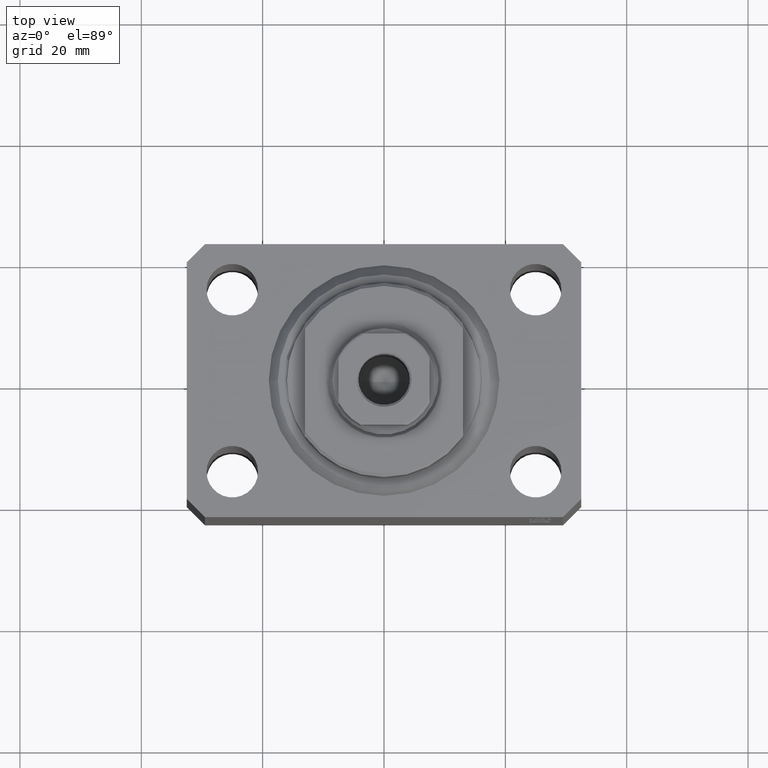
[diagram: clean part render]
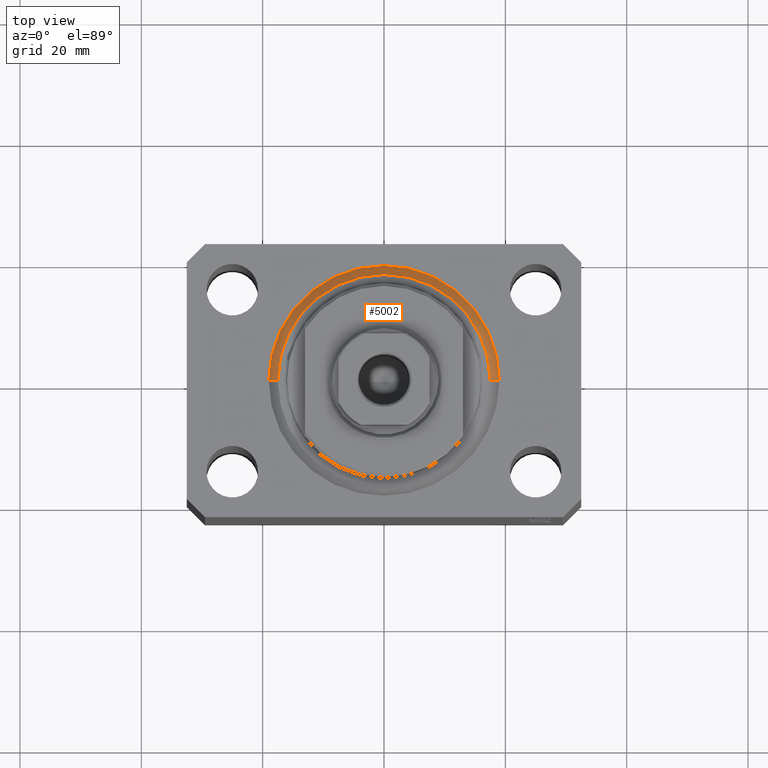
[diagram: same view with one face highlighted and labeled with its STEP entity id]
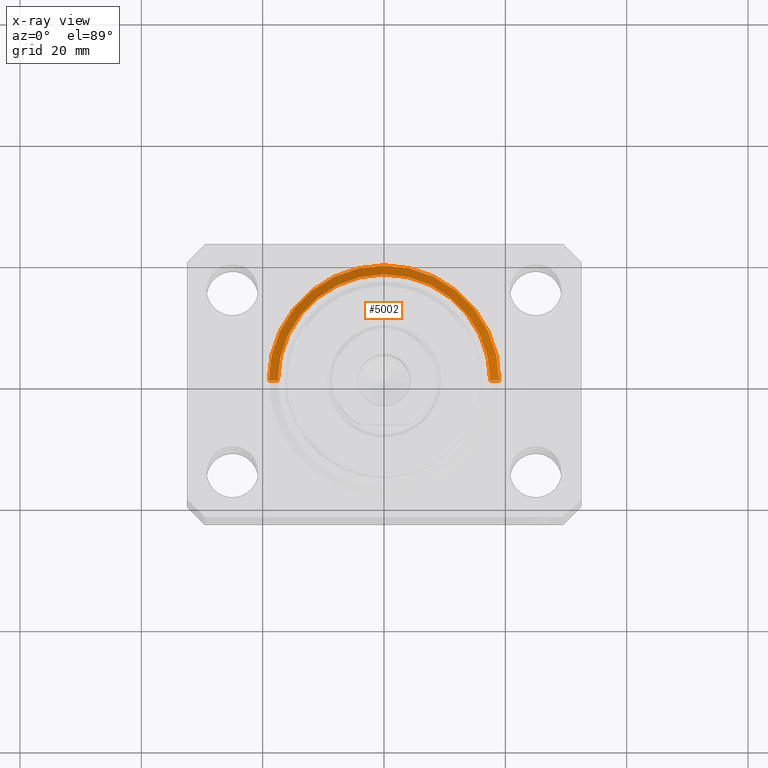
[diagram: x-ray of the same camera — body ghosted, the highlighted face saturated]
A machine part, top view. The second image highlights one B-rep face of the part: STEP entity #5002.
The next image is the same camera in x-ray: the body ghosted, the highlighted face saturated — about 0% of this face is hidden behind the body in this view.
In plain terms, the highlighted conical surface has half-angle 45 deg.
Its self-contained STEP definition (entity closure, byte-faithful):
#4628 = FACE_OUTER_BOUND ( 'NONE', #8546, .T. ) ;
#5002 = ADVANCED_FACE ( 'NONE', ( #4628 ), #16476, .T. ) ;
#6930 = CARTESIAN_POINT ( 'NONE',  ( 0.000000000000000000, 0.000000000000000000, 1.500000000000004885 ) ) ;
#7907 = CARTESIAN_POINT ( 'NONE',  ( -19.00000000000000000, 0.000000000000000000, 1.500000000000004885 ) ) ;
#8546 = EDGE_LOOP ( 'NONE', ( #12284, #35199, #16486, #9225 ) ) ;
#8586 = EDGE_CURVE ( 'NONE', #35663, #10308, #43185, .T. ) ;
#8706 = EDGE_CURVE ( 'NONE', #9582, #13582, #33095, .T. ) ;
#9225 = ORIENTED_EDGE ( 'NONE', *, *, #37150, .F. ) ;
#9582 = VERTEX_POINT ( 'NONE', #28248 ) ;
#10308 = VERTEX_POINT ( 'NONE', #7907 ) ;
#10987 = DIRECTION ( 'NONE',  ( -0.000000000000000000, -0.000000000000000000, -1.000000000000000000 ) ) ;
#11228 = EDGE_CURVE ( 'NONE', #9582, #10308, #24880, .T. ) ;
#11313 = DIRECTION ( 'NONE',  ( 0.7071067811865483499, 0.000000000000000000, 0.7071067811865467956 ) ) ;
#11404 = CARTESIAN_POINT ( 'NONE',  ( 0.000000000000000000, 0.000000000000000000, 1.500000000000004885 ) ) ;
#12284 = ORIENTED_EDGE ( 'NONE', *, *, #8706, .F. ) ;
#13582 = VERTEX_POINT ( 'NONE', #23764 ) ;
#15746 = AXIS2_PLACEMENT_3D ( 'NONE', #6930, #16646, #30678 ) ;
#16476 = CONICAL_SURFACE ( 'NONE', #41040, 19.00000000000000000, 0.7853981633974492782 ) ;
#16486 = ORIENTED_EDGE ( 'NONE', *, *, #8586, .F. ) ;
#16646 = DIRECTION ( 'NONE',  ( -0.000000000000000000, -0.000000000000000000, 1.000000000000000000 ) ) ;
#18541 = CARTESIAN_POINT ( 'NONE',  ( 19.00000000000000000, 0.000000000000000000, 1.500000000000004885 ) ) ;
#20085 = AXIS2_PLACEMENT_3D ( 'NONE', #39259, #10987, #41756 ) ;
#22692 = DIRECTION ( 'NONE',  ( -0.000000000000000000, -0.000000000000000000, 1.000000000000000000 ) ) ;
#23764 = CARTESIAN_POINT ( 'NONE',  ( 17.49999999999999289, 0.000000000000000000, 0.000000000000000000 ) ) ;
#24880 = LINE ( 'NONE', #32105, #36034 ) ;
#28248 = CARTESIAN_POINT ( 'NONE',  ( -17.49999999999999289, 2.234980408443919215E-15, 0.000000000000000000 ) ) ;
#30678 = DIRECTION ( 'NONE',  ( 1.000000000000000000, 0.000000000000000000, 0.000000000000000000 ) ) ;
#32105 = CARTESIAN_POINT ( 'NONE',  ( -19.00000000000000000, 2.326828918379970970E-15, 1.500000000000004885 ) ) ;
#33095 = CIRCLE ( 'NONE', #20085, 17.49999999999999289 ) ;
#35066 = LINE ( 'NONE', #18541, #37748 ) ;
#35199 = ORIENTED_EDGE ( 'NONE', *, *, #11228, .T. ) ;
#35663 = VERTEX_POINT ( 'NONE', #44440 ) ;
#36034 = VECTOR ( 'NONE', #38458, 1000.000000000000000 ) ;
#37150 = EDGE_CURVE ( 'NONE', #13582, #35663, #35066, .T. ) ;
#37748 = VECTOR ( 'NONE', #11313, 1000.000000000000000 ) ;
#38458 = DIRECTION ( 'NONE',  ( -0.7071067811865483499, 8.659560562354943952E-17, 0.7071067811865467956 ) ) ;
#39259 = CARTESIAN_POINT ( 'NONE',  ( 0.000000000000000000, 0.000000000000000000, 0.000000000000000000 ) ) ;
#41040 = AXIS2_PLACEMENT_3D ( 'NONE', #11404, #22692, #43490 ) ;
#41756 = DIRECTION ( 'NONE',  ( 1.000000000000000000, 0.000000000000000000, 0.000000000000000000 ) ) ;
#43185 = CIRCLE ( 'NONE', #15746, 19.00000000000000000 ) ;
#43490 = DIRECTION ( 'NONE',  ( 1.000000000000000000, 0.000000000000000000, 0.000000000000000000 ) ) ;
#44440 = CARTESIAN_POINT ( 'NONE',  ( 19.00000000000000000, 2.326828918379970970E-15, 1.500000000000004885 ) ) ;